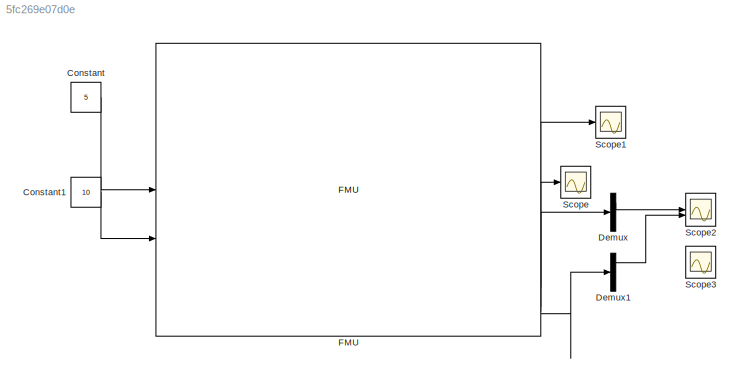
MODEL slx_5fc269e07d0e
KIND model
CONFIG AbsTol = auto
CONFIG EnableMultiTasking = off
CONFIG FixedStep = auto
CONFIG MaxStep = auto
CONFIG MinStep = auto
CONFIG RelTol = 1e-3
CONFIG SampleTimeConstraint = Unconstrained
CONFIG SolverName = VariableStepAuto
CONFIG StartTime = 0.0
CONFIG StopTime = 100
BLOCK [Constant] Constant
  Value = 5
BLOCK [Constant] Constant1
  Value = 10
BLOCK [Demux] Demux
  Outputs = 3
BLOCK [Demux] Demux1
  Outputs = 3
BLOCK [FMU] FMU
  FMUCachedDialogLayout = {"Geometry":[154,214,562,418],"ParameterColumnsWidthConfig":"{\"columns\":[{\"name\":\"Parameter\",\"width\":441},{\"name\":\"Value\",\"width\":332},{\"name\":\"Unit\",\"width\":303},{\"name\":\"Description\",\"width\":463}]}","InputColumnsWidthConfig":[],"OutputColumnsWidthConfig":"{\"columns\":[{\"name\":\"Name\",\"width\":216},{\"name\":\"Visibility\",\"width\":79},{\"name\":\"Start\",\"width\"...<+84ch>
  FMUInitializeEnumObject = off
  FMUMode = ModelExchange
  FMUName = ThreeWheelVehicleFMU.fmu
  MaskDisplay = disp('ThreeWheelVehicleFMU');\nport_label('output',1,'outActualSteeringAngle');\nport_label('output',2,'outCarAcc');\nport_label('output',3,'outCarAngle');\nport_label('output',4,'outCarAngularAcc');\nport_label('output',5,'outCarAngularVelocity');\nport_label('output',6,'outCarDistance');\nport_label('output',7,'outCarPosition');\nport_label('output',8,'outCarSpeed');\nport_label('output',9,'outCarVelocit...<+539ch>
  MaskPromptString = airResistanceLongitudinal|backLengthm|body2|const|dragCoefAir drag coefficient|front|front2|frontLengthm|frontTrail|frontWheel|gm/s2 Gravity|gearRatio|inertiaBodykgm2|inertiaWheel|masskg|muA|muS|planarWorld|rear|rearLeft|rearLeftWheel|rearRight|rearRightWheel|sAd|sSl|speedStartm/s|steeringControl|turnRadiusMAX|vAd|vSl|vehicleFrontAream2, for air resistance calculation|vehicleWidthm|wheelRadiusm|bo...<+2507ch>
  MaskType = ThreeWheelVehicleFMU [Model Exchange, v2.0]
  MultithreadedSim = off
  airResistanceLongitudinal = struct('r',[0.0,1.0],'rho',1.18)
  backLength = 0.5
  body2 = struct('I',1e-08,'m',0.1)
  body2_sphere_shapeType = sphere
  body_sphere_shapeType = sphere
  const = struct('k',0.0)
  dragCoef = 0.5
  front = struct('r',[0.0],'width',0.2)
  front2 = struct('r',[0.001,0.0])
  front2_cylinder_shapeType = cylinder
  frontLength = 1.5
  frontTrail = struct('r',[0.0])
  frontTrail_cylinder_shapeType = cylinder
  frontWheel = struct('diameter',0.1,'r',[0.0,1.0])
  frontWheel_cylinder_shapeType = cylinder
  frontWheel_rim1_shapeType = cylinder
  frontWheel_rim2_shapeType = cylinder
  front_cylinder_shapeType = cylinder
  g = 9.82
  gearRatio = 7
  inertiaBody = 350.0
  inertiaWheel = 0.3
  mass = 350.0
  muA = 1.0
  muS = 0.7
  planarWorld = struct('constantGravity',[0.0,0.0],'defaultFrameDiameterFraction',40.0,'defaultN_to_m',1000.0,'defaultNm_to_m',1000.0,'defaultSpecularCoefficient',0.7,'defaultWidthFraction',20.0,'defaultZPosition',0.0,'gravityArrowTail',[0.0,0.0],'nominalLength',1.0)
  planarWorld_label1 = x
  planarWorld_label2 = y
  rear = struct('r',[0.0],'width',0.2)
  rearLeft = struct('r',[0,0.0])
  rearLeftWheel = struct('diameter',0.1,'r',[0.0,1.0])
  rearLeftWheel_cylinder_shapeType = cylinder
  rearLeftWheel_rim1_shapeType = cylinder
  rearLeftWheel_rim2_shapeType = cylinder
  rearLeft_cylinder_shapeType = cylinder
  rearRight = struct('r',[0,0.0])
  rearRightWheel = struct('diameter',0.1,'r',[0.0,1.0])
  rearRightWheel_cylinder_shapeType = cylinder
  rearRightWheel_rim1_shapeType = cylinder
  rearRightWheel_rim2_shapeType = cylinder
  rearRight_cylinder_shapeType = cylinder
  rear_cylinder_shapeType = cylinder
  revolute_cylinder_shapeType = cylinder
  sAd = 0.07000000000000001
  sSl = 0.2
  speedStart = 11.11111111111111
  steeringControl = struct('i_2',900.0,'p',800.0)
  turnRadiusMAX = 500.0
  vAd = 0.1
  vSl = 0.3
  vehicleFrontArea = 1.5
  vehicleWidth = 1.0
  wheelRadius = 0.28
BLOCK [Scope] Scope
  Floating = off
  NumInputPorts = 1
  ScopeSpecificationString = Simulink.scopes.TimeScopeBlockCfg('CurrentConfiguration', extmgr.ConfigurationSet(extmgr.Configuration('Core','General UI',true),extmgr.Configuration('Core','Source UI',true),extmgr.Configuration('Sources','WiredSimulink',true),extmgr.Configuration('Visuals','Time Domain',true,'SerializedDisplays',{struct('MinYLimReal','-3.62732','MaxYLimReal','32.64588','YLabelReal','','MinYLimMag','0.00000','Max...<+1394ch>
BLOCK [Scope] Scope1
  Floating = off
  NumInputPorts = 1
  ScopeSpecificationString = Simulink.scopes.TimeScopeBlockCfg('CurrentConfiguration', extmgr.ConfigurationSet(extmgr.Configuration('Core','General UI',true),extmgr.Configuration('Core','Source UI',true),extmgr.Configuration('Sources','WiredSimulink',true,'DataLoggingVariableName','ScopeData1'),extmgr.Configuration('Visuals','Time Domain',true,'SerializedDisplays',{struct('MinYLimReal','-0.03628','MaxYLimReal','0.00403','YLab...<+1399ch>
BLOCK [Scope] Scope2
  Floating = off
  NumInputPorts = 2
  ScopeSpecificationString = Simulink.scopes.TimeScopeBlockCfg('CurrentConfiguration', extmgr.ConfigurationSet(extmgr.Configuration('Core','General UI',true),extmgr.Configuration('Core','Source UI',true),extmgr.Configuration('Sources','WiredSimulink',true,'DataLoggingVariableName','ScopeData2'),extmgr.Configuration('Visuals','Time Domain',true,'SerializedDisplays',{struct('MinYLimReal','-281.25313','MaxYLimReal','31.25035','Y...<+1446ch>
BLOCK [Scope] Scope3
  Floating = off
  NumInputPorts = 1
  ScopeSpecificationString = Simulink.scopes.TimeScopeBlockCfg('CurrentConfiguration', extmgr.ConfigurationSet(extmgr.Configuration('Core','General UI',true),extmgr.Configuration('Core','Source UI',true),extmgr.Configuration('Sources','WiredSimulink',true,'DataLoggingVariableName','ScopeData3'),extmgr.Configuration('Visuals','Time Domain',true),extmgr.Configuration('Tools','Plot Navigation',true),extmgr.Configuration('Tools',...<+40ch>
LINE Constant1:1 -> FMU:2
LINE Constant:1 -> FMU:1
LINE Demux1:1 -> Scope2:2
LINE Demux:1 -> Scope2:1
LINE FMU:11 -> Demux:1
LINE FMU:12 -> Demux1:1
LINE FMU:5 -> Scope1:1
LINE FMU:9 -> Scope:1
